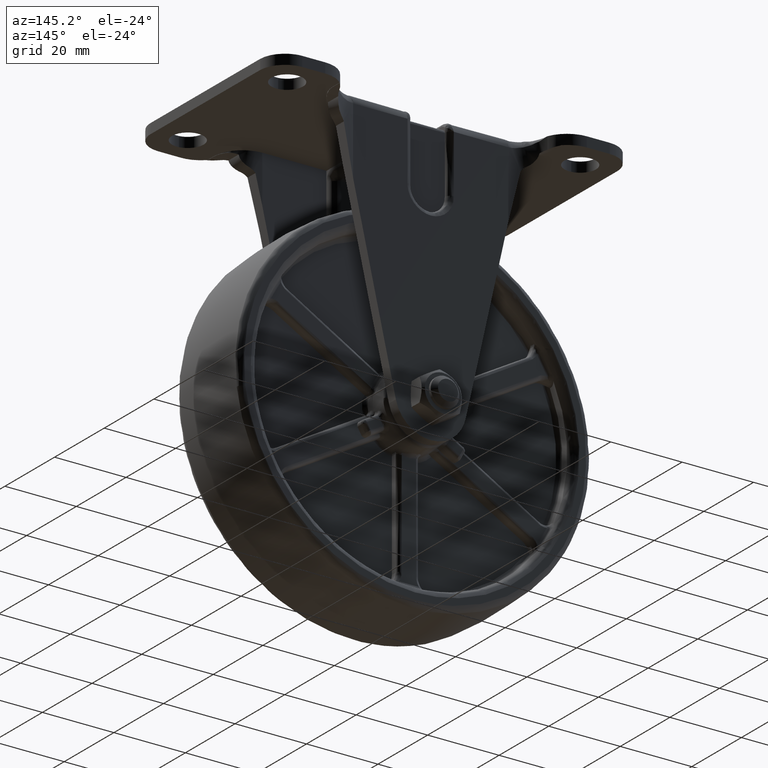
[diagram: clean part render]
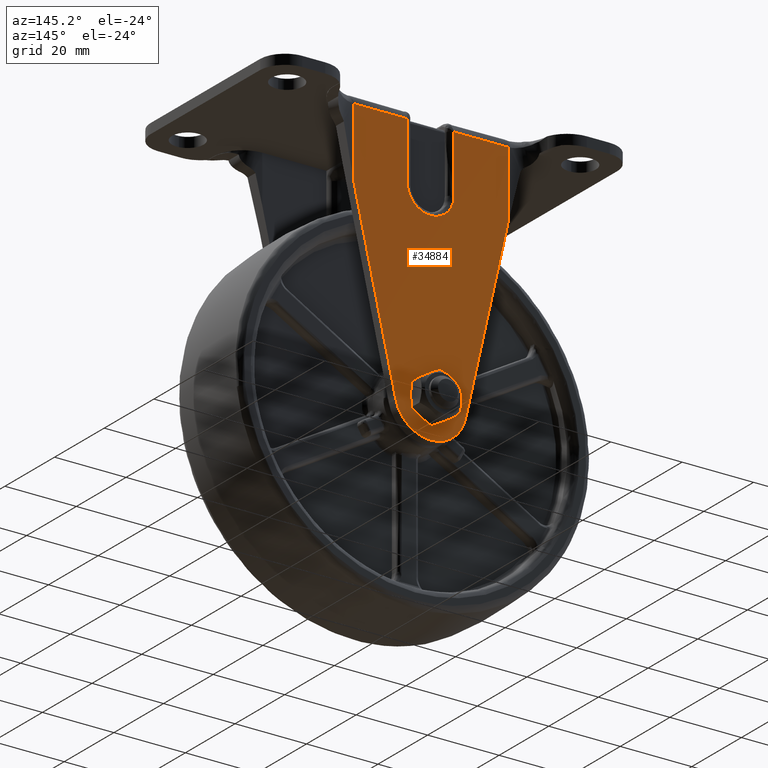
[diagram: same view with one face highlighted and labeled with its STEP entity id]
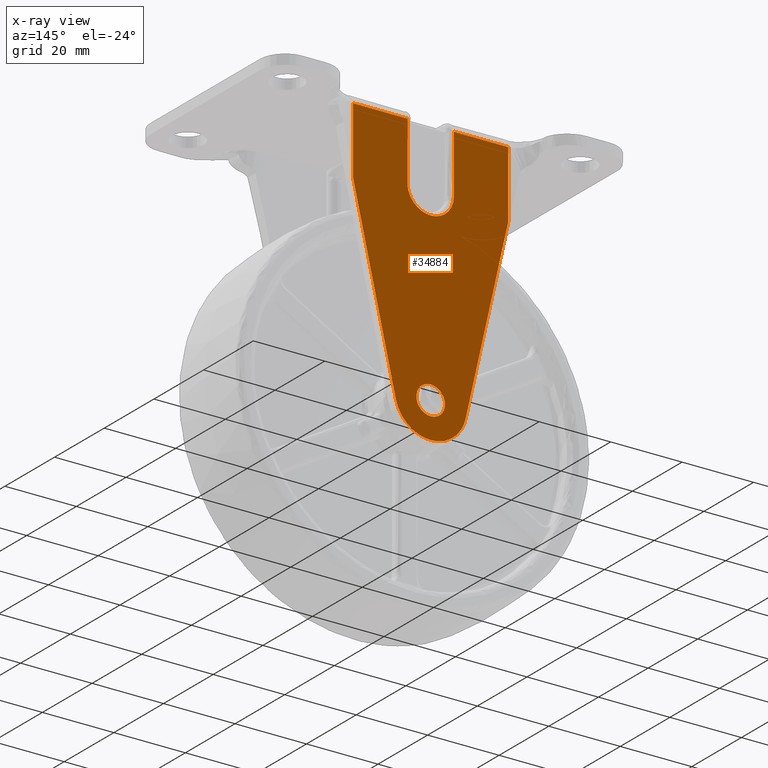
[diagram: x-ray of the same camera — body ghosted, the highlighted face saturated]
A machine part, auxiliary view. The second image highlights one B-rep face of the part: STEP entity #34884.
The next image is the same camera in x-ray: the body ghosted, the highlighted face saturated — about 0% of this face is hidden behind the body in this view.
In plain terms, the highlighted face is a freeform B-spline surface patch.
Its self-contained STEP definition (entity closure, byte-faithful):
#28185=CARTESIAN_POINT('',(0.0,18.800000000000001,4.0));
#28186=VERTEX_POINT('',#28185);
#28187=CARTESIAN_POINT('',(-3.987669334924047,18.800000000000001,0.313836383018936));
#28188=VERTEX_POINT('',#28187);
#28189=CARTESIAN_POINT('',(0.0,18.800000000000001,4.0));
#28190=CARTESIAN_POINT('',(-3.697561966432752,18.800000000000004,4.0));
#28191=CARTESIAN_POINT('',(-3.987669334924047,18.800000000000008,0.313836383018936));
#28199=(BOUNDED_CURVE()B_SPLINE_CURVE(2,(#28189,#28190,#28191),.UNSPECIFIED.,.F.,.U.)B_SPLINE_CURVE_WITH_KNOTS((3,3),(0.0,0.236331300623520),.UNSPECIFIED.)CURVE()GEOMETRIC_REPRESENTATION_ITEM()RATIONAL_B_SPLINE_CURVE((1.0,0.723120658616031,0.969723356152517))REPRESENTATION_ITEM(''));
#28200=EDGE_CURVE('',#28186,#28188,#28199,.T.);
#28202=CARTESIAN_POINT('',(3.987669334924046,18.800000000000001,-0.313836383018936));
#28203=VERTEX_POINT('',#28202);
#28204=CARTESIAN_POINT('',(3.987669334924047,18.799999999999997,-0.313836383018936));
#28205=CARTESIAN_POINT('',(4.000000000000001,18.800000000000004,-0.157160428138733));
#28206=CARTESIAN_POINT('',(4.0,18.800000000000001,0.0));
#28207=CARTESIAN_POINT('',(4.000000000000000,18.800000000000008,4.000000000000000));
#28208=CARTESIAN_POINT('',(0.0,18.800000000000001,4.0));
#28216=(BOUNDED_CURVE()B_SPLINE_CURVE(2,(#28204,#28205,#28206,#28207,#28208),.UNSPECIFIED.,.F.,.U.)B_SPLINE_CURVE_WITH_KNOTS((3,2,3),(0.736331300623520,0.750000000000000,1.0),.UNSPECIFIED.)CURVE()GEOMETRIC_REPRESENTATION_ITEM()RATIONAL_B_SPLINE_CURVE((0.969723356152517,0.983986122570517,1.0,0.707106781186548,1.0))REPRESENTATION_ITEM(''));
#28217=EDGE_CURVE('',#28203,#28186,#28216,.T.);
#28284=CARTESIAN_POINT('',(0.0,18.800000000000001,-4.0));
#28285=VERTEX_POINT('',#28284);
#28286=CARTESIAN_POINT('',(-3.987669334924046,18.800000000000008,0.313836383018936));
#28287=CARTESIAN_POINT('',(-4.0,18.800000000000001,0.157160428138732));
#28288=CARTESIAN_POINT('',(-4.0,18.800000000000001,0.0));
#28289=CARTESIAN_POINT('',(-4.000000000000000,18.800000000000008,-4.000000000000000));
#28290=CARTESIAN_POINT('',(0.0,18.800000000000001,-4.0));
#28298=(BOUNDED_CURVE()B_SPLINE_CURVE(2,(#28286,#28287,#28288,#28289,#28290),.UNSPECIFIED.,.F.,.U.)B_SPLINE_CURVE_WITH_KNOTS((3,2,3),(0.236331300623520,0.250000000000000,0.500000000000000),.UNSPECIFIED.)CURVE()GEOMETRIC_REPRESENTATION_ITEM()RATIONAL_B_SPLINE_CURVE((0.969723356152517,0.983986122570517,1.0,0.707106781186548,1.0))REPRESENTATION_ITEM(''));
#28299=EDGE_CURVE('',#28188,#28285,#28298,.T.);
#28333=CARTESIAN_POINT('',(0.0,18.800000000000001,-4.0));
#28334=CARTESIAN_POINT('',(3.697561966432764,18.799999999999994,-4.0));
#28335=CARTESIAN_POINT('',(3.987669334924046,18.799999999999997,-0.313836383018936));
#28343=(BOUNDED_CURVE()B_SPLINE_CURVE(2,(#28333,#28334,#28335),.UNSPECIFIED.,.F.,.U.)B_SPLINE_CURVE_WITH_KNOTS((3,3),(0.500000000000000,0.736331300623520),.UNSPECIFIED.)CURVE()GEOMETRIC_REPRESENTATION_ITEM()RATIONAL_B_SPLINE_CURVE((1.0,0.723120658616030,0.969723356152518))REPRESENTATION_ITEM(''));
#28344=EDGE_CURVE('',#28285,#28203,#28343,.T.);
#29656=CARTESIAN_POINT('',(6.499997999999920,18.800000000000001,69.200000000000003));
#29657=VERTEX_POINT('',#29656);
#29906=CARTESIAN_POINT('',(-6.500000000000000,18.800000000000001,69.200000000000003));
#29907=VERTEX_POINT('',#29906);
#30200=CARTESIAN_POINT('',(21.703256414946299,18.800000000001901,69.200000000000003));
#30201=VERTEX_POINT('',#30200);
#30215=CARTESIAN_POINT('',(6.499997999999920,18.800000000000001,69.200000000000003));
#30216=CARTESIAN_POINT('',(11.567750804982040,18.800000000000630,69.200000000000003));
#30217=CARTESIAN_POINT('',(16.635503609964150,18.800000000001269,69.200000000000003));
#30218=CARTESIAN_POINT('',(21.703256414946299,18.800000000001901,69.200000000000003));
#30219=B_SPLINE_CURVE_WITH_KNOTS('',3,(#30215,#30216,#30217,#30218),.UNSPECIFIED.,.F.,.U.,(4,4),(0.696600985722598,1.0),.UNSPECIFIED.);
#30220=EDGE_CURVE('',#29657,#30201,#30219,.T.);
#30623=CARTESIAN_POINT('',(-21.703259000000099,18.800000000000001,69.200000000000003));
#30624=VERTEX_POINT('',#30623);
#30625=CARTESIAN_POINT('',(-21.703259000000099,18.800000000000001,69.200000000000003));
#30626=CARTESIAN_POINT('',(-16.635506000000049,18.800000000000001,69.200000000000003));
#30627=CARTESIAN_POINT('',(-11.567753000000019,18.800000000000001,69.200000000000003));
#30628=CARTESIAN_POINT('',(-6.500000000000000,18.800000000000001,69.200000000000003));
#30629=B_SPLINE_CURVE_WITH_KNOTS('',3,(#30625,#30626,#30627,#30628),.UNSPECIFIED.,.F.,.U.,(4,4),(0.0,0.303399055238262),.UNSPECIFIED.);
#30630=EDGE_CURVE('',#30624,#29907,#30629,.T.);
#31817=CARTESIAN_POINT('',(6.500001999999911,18.800000000000001,52.999997999999998));
#31818=VERTEX_POINT('',#31817);
#31819=CARTESIAN_POINT('',(6.500001999999911,18.800000000000001,52.999997999999998));
#31820=CARTESIAN_POINT('',(6.499997999999920,18.800000000000001,69.200000000000003));
#31821=QUASI_UNIFORM_CURVE('',1,(#31819,#31820),.UNSPECIFIED.,.F.,.U.);
#31822=EDGE_CURVE('',#31818,#29657,#31821,.T.);
#31870=CARTESIAN_POINT('',(-6.500000000000000,18.800000000000001,52.999997999999998));
#31871=VERTEX_POINT('',#31870);
#31903=CARTESIAN_POINT('',(-6.500000000000000,18.800000000000001,52.999997999999998));
#31904=CARTESIAN_POINT('',(-6.500000000000000,18.799999999999997,46.499997999999998));
#31905=CARTESIAN_POINT('',(0.000000999999955,18.800000000000001,46.499997999999998));
#31906=CARTESIAN_POINT('',(6.500001999999912,18.799999999999997,46.499997999999998));
#31907=CARTESIAN_POINT('',(6.500001999999911,18.800000000000001,52.999997999999998));
#31915=(BOUNDED_CURVE()B_SPLINE_CURVE(2,(#31903,#31904,#31905,#31906,#31907),.UNSPECIFIED.,.F.,.U.)B_SPLINE_CURVE_WITH_KNOTS((3,2,3),(0.0,0.500000000000000,1.0),.UNSPECIFIED.)CURVE()GEOMETRIC_REPRESENTATION_ITEM()RATIONAL_B_SPLINE_CURVE((1.0,0.707106781186547,1.0,0.707106781186547,1.0))REPRESENTATION_ITEM(''));
#31916=EDGE_CURVE('',#31871,#31818,#31915,.T.);
#31935=CARTESIAN_POINT('',(-6.500000000000000,18.800000000000001,69.200000000000003));
#31936=CARTESIAN_POINT('',(-6.500000000000000,18.800000000000001,52.999997999999998));
#31937=QUASI_UNIFORM_CURVE('',1,(#31935,#31936),.UNSPECIFIED.,.F.,.U.);
#31938=EDGE_CURVE('',#29907,#31871,#31937,.T.);
#32943=CARTESIAN_POINT('',(9.751882999999999,18.800000000000001,-2.213885999999890));
#32944=VERTEX_POINT('',#32943);
#32950=CARTESIAN_POINT('',(21.703256833825300,18.800000000000001,50.430380393001514));
#32951=VERTEX_POINT('',#32950);
#32952=CARTESIAN_POINT('',(9.751882999999999,18.800000000000001,-2.213885999999890));
#32953=CARTESIAN_POINT('',(21.703256833825300,18.800000000000001,50.430380393001514));
#32954=QUASI_UNIFORM_CURVE('',1,(#32952,#32953),.UNSPECIFIED.,.F.,.U.);
#32955=EDGE_CURVE('',#32944,#32951,#32954,.T.);
#33224=CARTESIAN_POINT('',(0.017467054338890,18.799995000000749,-9.999999999999879));
#33225=VERTEX_POINT('',#33224);
#33231=CARTESIAN_POINT('',(9.751882999999999,18.800000000000001,-2.213885999999890));
#33232=CARTESIAN_POINT('',(7.987426704086937,18.799997500000373,-9.986089310882571));
#33233=CARTESIAN_POINT('',(0.017467054338890,18.799995000000749,-9.999999999999879));
#33241=(BOUNDED_CURVE()B_SPLINE_CURVE(2,(#33231,#33232,#33233),.UNSPECIFIED.,.F.,.U.)CURVE()GEOMETRIC_REPRESENTATION_ITEM()QUASI_UNIFORM_CURVE()RATIONAL_B_SPLINE_CURVE((1.0,0.782013351114645,1.0))REPRESENTATION_ITEM(''));
#33242=EDGE_CURVE('',#32944,#33225,#33241,.T.);
#33313=CARTESIAN_POINT('',(-21.703259000000099,18.800000000000001,50.430478844339397));
#33314=VERTEX_POINT('',#33313);
#33315=CARTESIAN_POINT('',(-9.751858431968641,18.800000000000001,-2.213878299013340));
#33316=VERTEX_POINT('',#33315);
#33317=CARTESIAN_POINT('',(-21.703259000000099,18.800000000000001,50.430478844339397));
#33318=CARTESIAN_POINT('',(-9.751858431968641,18.800000000000001,-2.213878299013340));
#33319=QUASI_UNIFORM_CURVE('',1,(#33317,#33318),.UNSPECIFIED.,.F.,.U.);
#33320=EDGE_CURVE('',#33314,#33316,#33319,.T.);
#33382=CARTESIAN_POINT('',(-0.017440738022248,18.799994999998500,-10.0));
#33383=VERTEX_POINT('',#33382);
#33403=CARTESIAN_POINT('',(-0.017440738022248,18.799994999998500,-10.0));
#33404=CARTESIAN_POINT('',(-7.987406844314034,18.799997499999243,-9.986089299613434));
#33405=CARTESIAN_POINT('',(-9.751858431968641,18.800000000000001,-2.213878299013340));
#33413=(BOUNDED_CURVE()B_SPLINE_CURVE(2,(#33403,#33404,#33405),.UNSPECIFIED.,.F.,.U.)CURVE()GEOMETRIC_REPRESENTATION_ITEM()QUASI_UNIFORM_CURVE()RATIONAL_B_SPLINE_CURVE((1.0,0.782013105021812,1.0))REPRESENTATION_ITEM(''));
#33414=EDGE_CURVE('',#33383,#33316,#33413,.T.);
#33939=CARTESIAN_POINT('',(-21.703259000000099,18.800000000000001,50.430478844339397));
#33940=CARTESIAN_POINT('',(-21.703259000000099,18.800000000000001,69.200000000000003));
#33941=QUASI_UNIFORM_CURVE('',1,(#33939,#33940),.UNSPECIFIED.,.F.,.U.);
#33942=EDGE_CURVE('',#33314,#30624,#33941,.T.);
#33965=CARTESIAN_POINT('',(21.703256833825300,18.800000000000001,50.430380393001514));
#33966=CARTESIAN_POINT('',(21.703256414946299,18.800000000001901,69.200000000000003));
#33967=QUASI_UNIFORM_CURVE('',1,(#33965,#33966),.UNSPECIFIED.,.F.,.U.);
#33968=EDGE_CURVE('',#32951,#30201,#33967,.T.);
#34581=CARTESIAN_POINT('',(0.017467054338890,18.799995000000749,-9.999999999999879));
#34582=CARTESIAN_POINT('',(-0.017440738022248,18.799994999998500,-10.0));
#34583=QUASI_UNIFORM_CURVE('',1,(#34581,#34582),.UNSPECIFIED.,.F.,.U.);
#34584=EDGE_CURVE('',#33225,#33383,#34583,.T.);
#34859=CARTESIAN_POINT('',(-23.871413974300118,18.800000000000001,-13.956039563537001));
#34860=CARTESIAN_POINT('',(-23.871413974300118,18.800000000000001,73.156036023021130));
#34861=CARTESIAN_POINT('',(23.871413360463290,18.800000000000001,-13.956039563537001));
#34862=CARTESIAN_POINT('',(23.871413360463290,18.800000000000001,73.156036023021130));
#34863=B_SPLINE_SURFACE_WITH_KNOTS('',1,1,((#34859,#34861),(#34860,#34862)),.UNSPECIFIED.,.F.,.F.,.U.,(2,2),(2,2),(0.0,87.112075586558134),(0.0,47.742827334763412),.UNSPECIFIED.);
#34864=ORIENTED_EDGE('',*,*,#33942,.T.);
#34865=ORIENTED_EDGE('',*,*,#30630,.T.);
#34866=ORIENTED_EDGE('',*,*,#31938,.T.);
#34867=ORIENTED_EDGE('',*,*,#31916,.T.);
#34868=ORIENTED_EDGE('',*,*,#31822,.T.);
#34869=ORIENTED_EDGE('',*,*,#30220,.T.);
#34870=ORIENTED_EDGE('',*,*,#33968,.F.);
#34871=ORIENTED_EDGE('',*,*,#32955,.F.);
#34872=ORIENTED_EDGE('',*,*,#33242,.T.);
#34873=ORIENTED_EDGE('',*,*,#34584,.T.);
#34874=ORIENTED_EDGE('',*,*,#33414,.T.);
#34875=ORIENTED_EDGE('',*,*,#33320,.F.);
#34876=EDGE_LOOP('',(#34864,#34865,#34866,#34867,#34868,#34869,#34870,#34871,#34872,#34873,#34874,#34875));
#34877=FACE_OUTER_BOUND('',#34876,.T.);
#34878=ORIENTED_EDGE('',*,*,#28344,.T.);
#34879=ORIENTED_EDGE('',*,*,#28217,.T.);
#34880=ORIENTED_EDGE('',*,*,#28200,.T.);
#34881=ORIENTED_EDGE('',*,*,#28299,.T.);
#34882=EDGE_LOOP('',(#34878,#34879,#34880,#34881));
#34883=FACE_BOUND('',#34882,.T.);
#34884=ADVANCED_FACE('',(#34877,#34883),#34863,.T.);